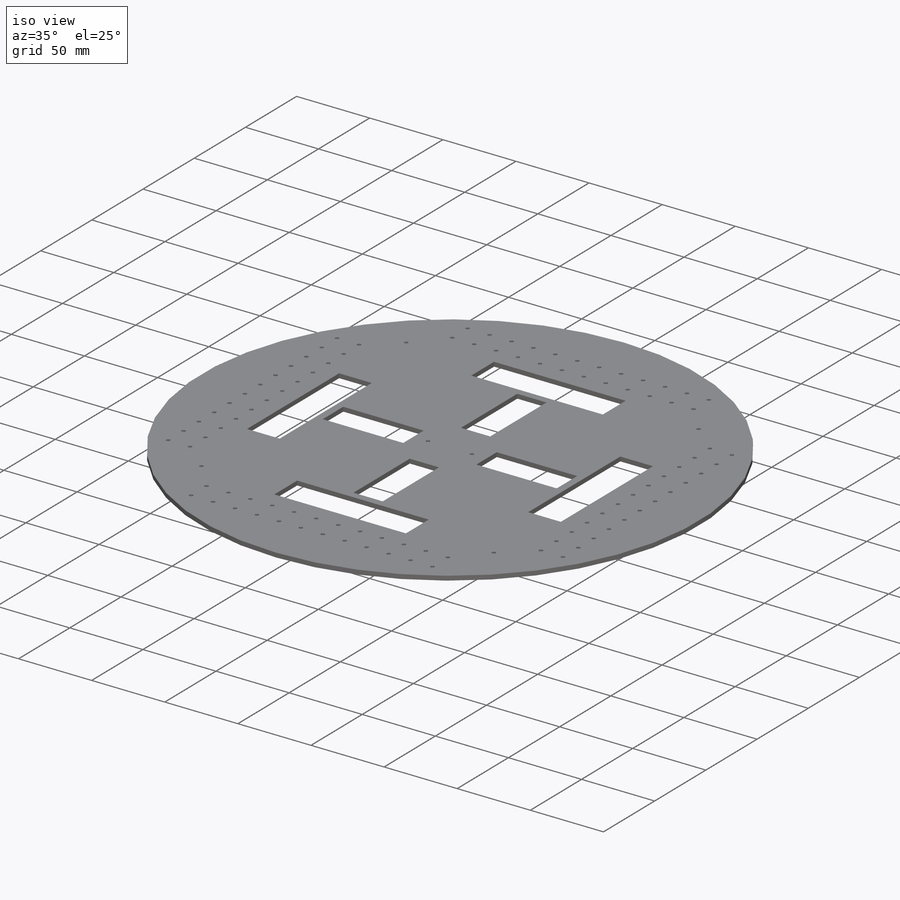
[diagram: iso view]
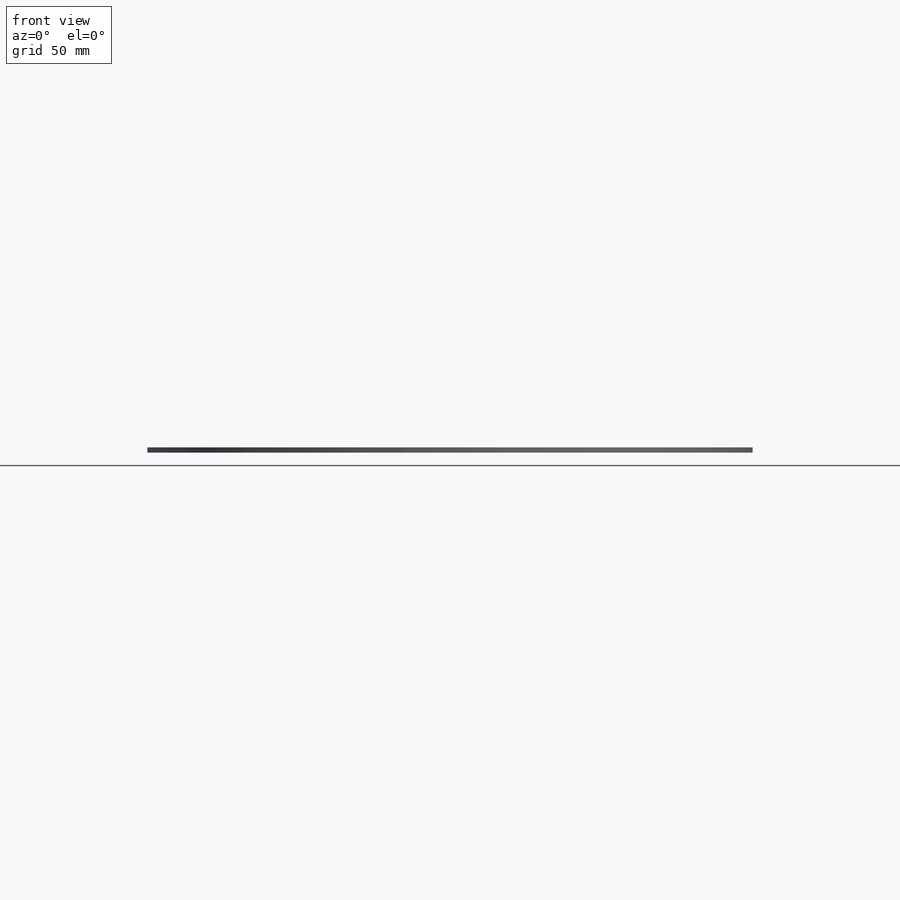
[diagram: front view]
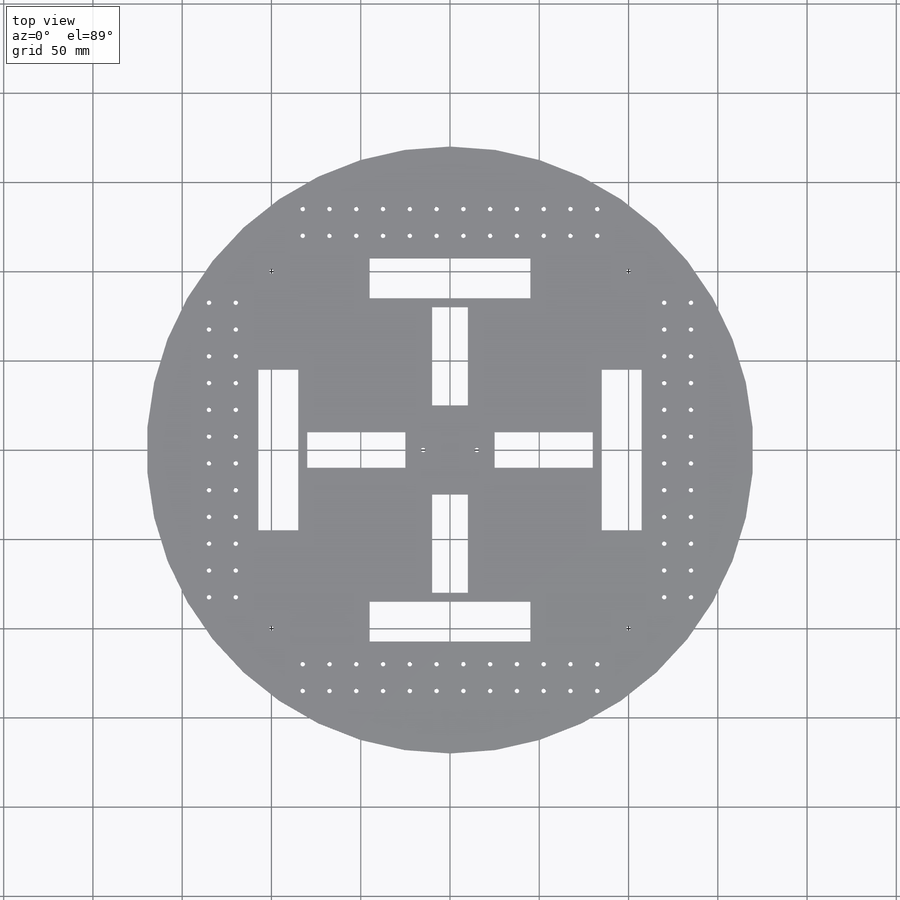
[diagram: top view]
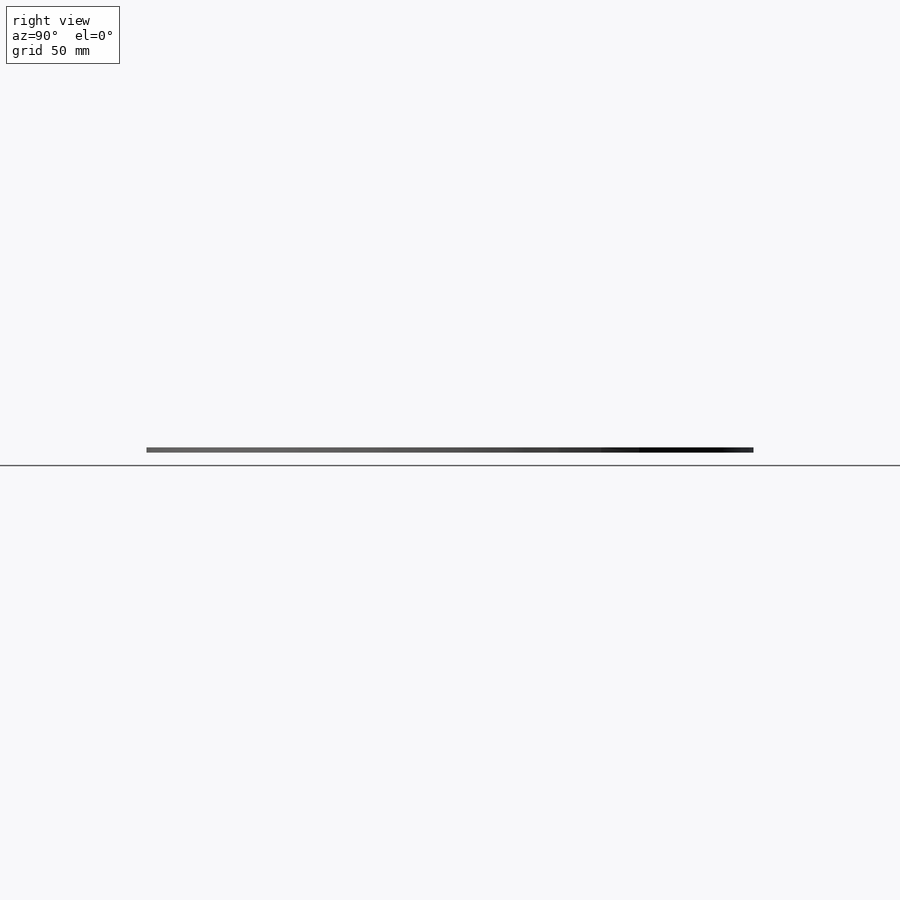
[diagram: right view]
SOLIDWORKS PART (.sldprt)
format: sldprt  version: not decoded by parser v0  size: 1,001,472 bytes
history: native  units: mm
features: thread x102, sketch x12, plane x3, hole x3, cut_extrude x2, material x1, extrude x1 + 5 further entries (+6 scaffold rows collapsed)
feature tree (135):
  scaffold x6  (default folders/planes/origin — collapsed)
  material  "1060 合金"
  "ｿﾘｯﾄﾞ ﾎﾞﾃﾞｨ"
  "ｻｰﾌｪｽ ﾎﾞﾃﾞｨ（複数）"
  plane  "VERT"
  plane  "HOR"
  plane  "CTR"
  "CS_DEF"
  "A_Y"
  "A_Z"
  sketch  "PNT_CG"
  sketch  "ｽｹｯﾁ1"  dims[D1=~192.225077mm]
  extrude  "ﾎﾞｽ - 押し出し1"  Depth=3mm
  sketch  "ｽｹｯﾁ3"  dims[c1.D2=~3.790547mm c1.D1=~3.604393mm c1.D3=~3.092197mm c2.D1=~4.129733mm c2.D2=7.5mm c3.D1=135.0mm c3.D2=7.5mm c4.D1=7.5mm c4.D2=15.0mm c4.D3=15.0mm c5.D1=7.5mm c5.D2=340.0mm c6.D1=2.0]
  hole  "M3 ねじ穴1"  [1 undecoded]
  sketch  "3Dｽｹｯﾁ1"
  sketch  "ｽｹｯﾁ4"  dims[hole-wizard template sketch: 60 standard entries collapsed; hole parameters kept: c18.次ｻｰﾌｪｽまでのねじ下穴ﾄﾞﾘﾙの深さ=3.0mm]
  thread  "穴のねじ山1"  Diameter=3mm  [1 undecoded]
  thread  "穴のねじ山2"  Diameter=3mm  [1 undecoded]
  thread  "穴のねじ山3"  Diameter=3mm  [1 undecoded]
  thread  "穴のねじ山4"  Diameter=3mm  [1 undecoded]
  thread  "穴のねじ山5"  Diameter=3mm  [1 undecoded]
  thread  "穴のねじ山6"  Diameter=3mm  [1 undecoded]
  thread  "穴のねじ山7"  Diameter=3mm  [1 undecoded]
  thread  "穴のねじ山8"  Diameter=3mm  [1 undecoded]
  thread  "穴のねじ山9"  Diameter=3mm  [1 undecoded]
  thread  "穴のねじ山10"  Diameter=3mm  [1 undecoded]
  thread  "穴のねじ山11"  Diameter=3mm  [1 undecoded]
  thread  "穴のねじ山12"  Diameter=3mm  [1 undecoded]
  thread  "穴のねじ山13"  Diameter=3mm  [1 undecoded]
  thread  "穴のねじ山14"  Diameter=3mm  [1 undecoded]
  thread  "穴のねじ山15"  Diameter=3mm  [1 undecoded]
  thread  "穴のねじ山16"  Diameter=3mm  [1 undecoded]
  thread  "穴のねじ山17"  Diameter=3mm  [1 undecoded]
  thread  "穴のねじ山18"  Diameter=3mm  [1 undecoded]
  thread  "穴のねじ山19"  Diameter=3mm  [1 undecoded]
  thread  "穴のねじ山20"  Diameter=3mm  [1 undecoded]
  thread  "穴のねじ山21"  Diameter=3mm  [1 undecoded]
  thread  "穴のねじ山22"  Diameter=3mm  [1 undecoded]
  thread  "穴のねじ山23"  Diameter=3mm  [1 undecoded]
  thread  "穴のねじ山24"  Diameter=3mm  [1 undecoded]
  thread  "穴のねじ山25"  Diameter=3mm  [1 undecoded]
  thread  "穴のねじ山26"  Diameter=3mm  [1 undecoded]
  thread  "穴のねじ山27"  Diameter=3mm  [1 undecoded]
  thread  "穴のねじ山28"  Diameter=3mm  [1 undecoded]
  thread  "穴のねじ山29"  Diameter=3mm  [1 undecoded]
  thread  "穴のねじ山30"  Diameter=3mm  [1 undecoded]
  thread  "穴のねじ山31"  Diameter=3mm  [1 undecoded]
  thread  "穴のねじ山32"  Diameter=3mm  [1 undecoded]
  thread  "穴のねじ山33"  Diameter=3mm  [1 undecoded]
  thread  "穴のねじ山34"  Diameter=3mm  [1 undecoded]
  thread  "穴のねじ山35"  Diameter=3mm  [1 undecoded]
  thread  "穴のねじ山36"  Diameter=3mm  [1 undecoded]
  thread  "穴のねじ山37"  Diameter=3mm  [1 undecoded]
  thread  "穴のねじ山38"  Diameter=3mm  [1 undecoded]
  thread  "穴のねじ山39"  Diameter=3mm  [1 undecoded]
  thread  "穴のねじ山40"  Diameter=3mm  [1 undecoded]
  thread  "穴のねじ山41"  Diameter=3mm  [1 undecoded]
  thread  "穴のねじ山42"  Diameter=3mm  [1 undecoded]
  thread  "穴のねじ山43"  Diameter=3mm  [1 undecoded]
  thread  "穴のねじ山44"  Diameter=3mm  [1 undecoded]
  thread  "穴のねじ山45"  Diameter=3mm  [1 undecoded]
  thread  "穴のねじ山46"  Diameter=3mm  [1 undecoded]
  thread  "穴のねじ山47"  Diameter=3mm  [1 undecoded]
  thread  "穴のねじ山48"  Diameter=3mm  [1 undecoded]
  thread  "穴のねじ山49"  Diameter=3mm  [1 undecoded]
  thread  "穴のねじ山50"  Diameter=3mm  [1 undecoded]
  thread  "穴のねじ山51"  Diameter=3mm  [1 undecoded]
  thread  "穴のねじ山52"  Diameter=3mm  [1 undecoded]
  thread  "穴のねじ山53"  Diameter=3mm  [1 undecoded]
  thread  "穴のねじ山54"  Diameter=3mm  [1 undecoded]
  thread  "穴のねじ山55"  Diameter=3mm  [1 undecoded]
  thread  "穴のねじ山56"  Diameter=3mm  [1 undecoded]
  thread  "穴のねじ山57"  Diameter=3mm  [1 undecoded]
  thread  "穴のねじ山58"  Diameter=3mm  [1 undecoded]
  thread  "穴のねじ山59"  Diameter=3mm  [1 undecoded]
  thread  "穴のねじ山60"  Diameter=3mm  [1 undecoded]
  thread  "穴のねじ山61"  Diameter=3mm  [1 undecoded]
  thread  "穴のねじ山62"  Diameter=3mm  [1 undecoded]
  thread  "穴のねじ山63"  Diameter=3mm  [1 undecoded]
  thread  "穴のねじ山64"  Diameter=3mm  [1 undecoded]
  thread  "穴のねじ山65"  Diameter=3mm  [1 undecoded]
  thread  "穴のねじ山66"  Diameter=3mm  [1 undecoded]
  thread  "穴のねじ山67"  Diameter=3mm  [1 undecoded]
  thread  "穴のねじ山68"  Diameter=3mm  [1 undecoded]
  thread  "穴のねじ山69"  Diameter=3mm  [1 undecoded]
  thread  "穴のねじ山70"  Diameter=3mm  [1 undecoded]
  thread  "穴のねじ山71"  Diameter=3mm  [1 undecoded]
  thread  "穴のねじ山72"  Diameter=3mm  [1 undecoded]
  thread  "穴のねじ山73"  Diameter=3mm  [1 undecoded]
  thread  "穴のねじ山74"  Diameter=3mm  [1 undecoded]
  thread  "穴のねじ山75"  Diameter=3mm  [1 undecoded]
  thread  "穴のねじ山76"  Diameter=3mm  [1 undecoded]
  thread  "穴のねじ山77"  Diameter=3mm  [1 undecoded]
  thread  "穴のねじ山78"  Diameter=3mm  [1 undecoded]
  thread  "穴のねじ山79"  Diameter=3mm  [1 undecoded]
  thread  "穴のねじ山80"  Diameter=3mm  [1 undecoded]
  thread  "穴のねじ山81"  Diameter=3mm  [1 undecoded]
  thread  "穴のねじ山82"  Diameter=3mm  [1 undecoded]
  thread  "穴のねじ山83"  Diameter=3mm  [1 undecoded]
  thread  "穴のねじ山84"  Diameter=3mm  [1 undecoded]
  thread  "穴のねじ山85"  Diameter=3mm  [1 undecoded]
  thread  "穴のねじ山86"  Diameter=3mm  [1 undecoded]
  thread  "穴のねじ山87"  Diameter=3mm  [1 undecoded]
  thread  "穴のねじ山88"  Diameter=3mm  [1 undecoded]
  thread  "穴のねじ山89"  Diameter=3mm  [1 undecoded]
  thread  "穴のねじ山90"  Diameter=3mm  [1 undecoded]
  thread  "穴のねじ山91"  Diameter=3mm  [1 undecoded]
  thread  "穴のねじ山92"  Diameter=3mm  [1 undecoded]
  thread  "穴のねじ山93"  Diameter=3mm  [1 undecoded]
  thread  "穴のねじ山94"  Diameter=3mm  [1 undecoded]
  thread  "穴のねじ山95"  Diameter=3mm  [1 undecoded]
  thread  "穴のねじ山96"  Diameter=3mm  [1 undecoded]
  hole  "M3 ねじ穴2"  [1 undecoded]
  sketch  "3Dｽｹｯﾁ2"
  sketch  "ｽｹｯﾁ5"  dims[hole-wizard template sketch: 60 standard entries collapsed; hole parameters kept: c18.次ｻｰﾌｪｽまでのねじ下穴ﾄﾞﾘﾙの深さ=3.0mm]
  thread  "穴のねじ山97"  Diameter=3mm  [1 undecoded]
  thread  "穴のねじ山98"  Diameter=3mm  [1 undecoded]
  sketch  "ｽｹｯﾁ7"  dims[D1=100.0mm D2=100.0mm]
  hole  "M3 ねじ穴3"  [1 undecoded]
  sketch  "3Dｽｹｯﾁ3"
  sketch  "ｽｹｯﾁ8"  dims[hole-wizard template sketch: 60 standard entries collapsed; hole parameters kept: c18.次ｻｰﾌｪｽまでのねじ下穴ﾄﾞﾘﾙの深さ=3.0mm]
  thread  "穴のねじ山99"  Diameter=3mm  [1 undecoded]
  thread  "穴のねじ山100"  Diameter=3mm  [1 undecoded]
  thread  "穴のねじ山101"  Diameter=3mm  [1 undecoded]
  thread  "穴のねじ山102"  Diameter=3mm  [1 undecoded]
  sketch  "ｽｹｯﾁ9"  dims[D1=90.0mm D2=85.0mm D3=45.0mm]
  cut_extrude  "ｶｯﾄ - 押し出し1"  Depth=10mm
  sketch  "ｽｹｯﾁ10"  dims[c1.D1=65.0mm c1.D2=15.0mm c1.D3=10.0mm c1.D4=10.0mm c2.D1=80.0mm c2.D2=55.0mm c3.D1=4.0]
  cut_extrude  "ｶｯﾄ - 押し出し2"  Depth=10mm
decode coverage: 113 of 120 modeling features carry decoded parameters; 5 rows unclassified (native names shown)
note: ~ marks probable driven/reference dimensions
note: 105 parameter values undecoded
summary: no parameter record found for 3 features
note: suppression state not decoded; provenance and decode notes live in map.json
